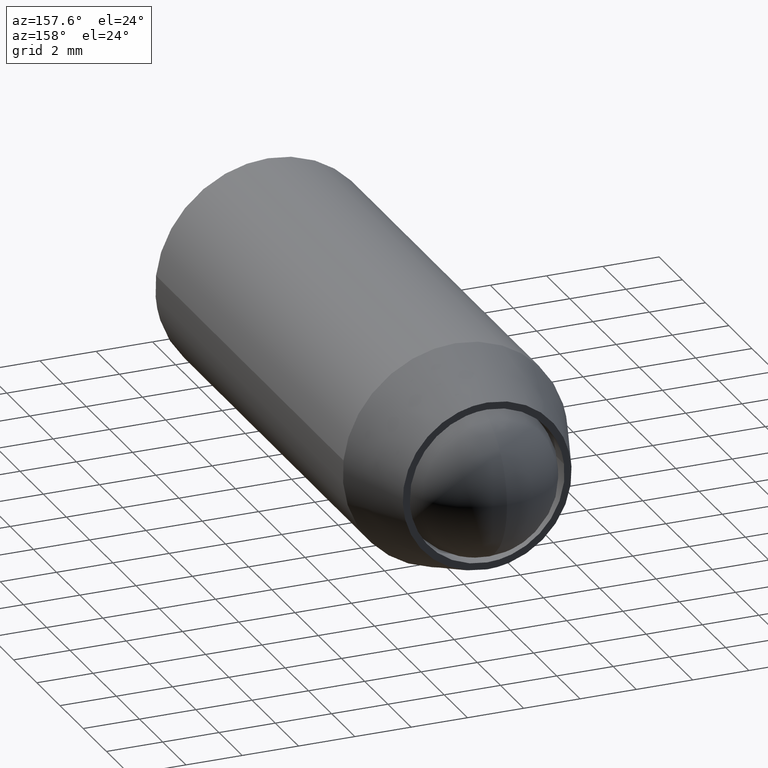
[diagram: clean part render]
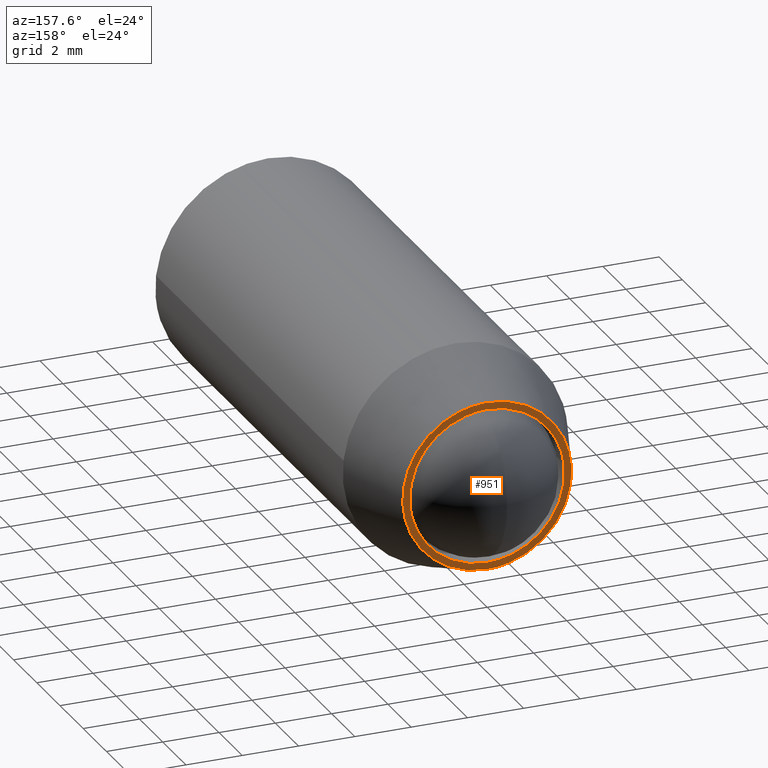
[diagram: same view with one face highlighted and labeled with its STEP entity id]
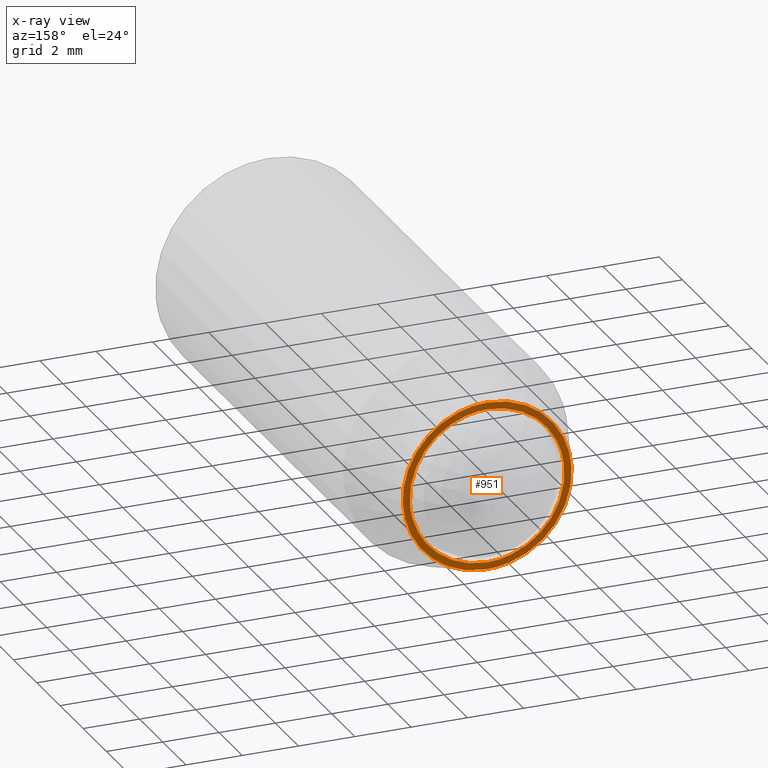
[diagram: x-ray of the same camera — body ghosted, the highlighted face saturated]
A machine part, auxiliary view. The second image highlights one B-rep face of the part: STEP entity #951.
The next image is the same camera in x-ray: the body ghosted, the highlighted face saturated — about 0% of this face is hidden behind the body in this view.
In plain terms, the highlighted face is a freeform B-spline surface patch.
Its self-contained STEP definition (entity closure, byte-faithful):
#100=CARTESIAN_POINT('',(2.744870878678144,-1.110223E-016,-0.167880491349306));
#101=VERTEX_POINT('',#100);
#107=CARTESIAN_POINT('',(0.0,0.0,-2.750000000000000));
#108=VERTEX_POINT('',#107);
#109=CARTESIAN_POINT('',(0.0,0.0,-2.750000000000000));
#110=CARTESIAN_POINT('',(2.586944509464315,0.0,-2.749999999999999));
#111=CARTESIAN_POINT('',(2.744870878678144,-1.110223E-016,-0.167880491349306));
#119=(BOUNDED_CURVE()B_SPLINE_CURVE(2,(#109,#110,#111),.UNSPECIFIED.,.F.,.U.)B_SPLINE_CURVE_WITH_KNOTS((3,3),(0.500000000000000,0.739333150347069),.UNSPECIFIED.)CURVE()GEOMETRIC_REPRESENTATION_ITEM()RATIONAL_B_SPLINE_CURVE((1.0,0.719603772904333,0.976072444818570))REPRESENTATION_ITEM(''));
#120=EDGE_CURVE('',#108,#101,#119,.T.);
#122=CARTESIAN_POINT('',(-2.730776763826689,-1.135771E-016,0.324589380789353));
#123=VERTEX_POINT('',#122);
#124=CARTESIAN_POINT('',(-2.730776763826689,-1.135771E-016,0.324589380789353));
#125=CARTESIAN_POINT('',(-2.750000000000000,0.0,0.162863921600079));
#126=CARTESIAN_POINT('',(-2.750000000000000,0.0,0.0));
#127=CARTESIAN_POINT('',(-2.750000000000000,0.0,-2.750000000000000));
#128=CARTESIAN_POINT('',(0.0,0.0,-2.750000000000000));
#136=(BOUNDED_CURVE()B_SPLINE_CURVE(2,(#124,#125,#126,#127,#128),.UNSPECIFIED.,.F.,.U.)B_SPLINE_CURVE_WITH_KNOTS((3,2,3),(0.229562768383781,0.250000000000000,0.500000000000000),.UNSPECIFIED.)CURVE()GEOMETRIC_REPRESENTATION_ITEM()RATIONAL_B_SPLINE_CURVE((0.956027332142316,0.976056293793159,1.0,0.707106781186548,1.0))REPRESENTATION_ITEM(''));
#137=EDGE_CURVE('',#123,#108,#136,.T.);
#185=CARTESIAN_POINT('',(0.0,0.0,2.750000000000000));
#186=VERTEX_POINT('',#185);
#187=CARTESIAN_POINT('',(0.0,0.0,2.750000000000000));
#188=CARTESIAN_POINT('',(-2.442484237880779,0.0,2.750000000000000));
#189=CARTESIAN_POINT('',(-2.730776763826689,-1.135771E-016,0.324589380789353));
#197=(BOUNDED_CURVE()B_SPLINE_CURVE(2,(#187,#188,#189),.UNSPECIFIED.,.F.,.U.)B_SPLINE_CURVE_WITH_KNOTS((3,3),(0.0,0.229562768383781),.UNSPECIFIED.)CURVE()GEOMETRIC_REPRESENTATION_ITEM()RATIONAL_B_SPLINE_CURVE((1.0,0.731050487393389,0.956027332142316))REPRESENTATION_ITEM(''));
#198=EDGE_CURVE('',#186,#123,#197,.T.);
#200=CARTESIAN_POINT('',(2.744870878678144,-1.110223E-016,-0.167880491349306));
#201=CARTESIAN_POINT('',(2.750000000000000,0.0,-0.084018598690310));
#202=CARTESIAN_POINT('',(2.750000000000000,0.0,0.0));
#203=CARTESIAN_POINT('',(2.750000000000000,0.0,2.750000000000000));
#204=CARTESIAN_POINT('',(0.0,0.0,2.750000000000000));
#212=(BOUNDED_CURVE()B_SPLINE_CURVE(2,(#200,#201,#202,#203,#204),.UNSPECIFIED.,.F.,.U.)B_SPLINE_CURVE_WITH_KNOTS((3,2,3),(0.739333150347069,0.750000000000000,1.0),.UNSPECIFIED.)CURVE()GEOMETRIC_REPRESENTATION_ITEM()RATIONAL_B_SPLINE_CURVE((0.976072444818570,0.987503008282215,1.0,0.707106781186548,1.0))REPRESENTATION_ITEM(''));
#213=EDGE_CURVE('',#101,#186,#212,.T.);
#260=CARTESIAN_POINT('',(-2.432920718910684,-2.809699E-013,-1.755248351514891));
#261=VERTEX_POINT('',#260);
#262=CARTESIAN_POINT('',(0.0,0.0,-3.000000000000001));
#263=VERTEX_POINT('',#262);
#264=CARTESIAN_POINT('',(-2.432920718910684,-2.809699E-013,-1.755248351514890));
#265=CARTESIAN_POINT('',(-1.534885586869182,0.0,-3.000000000000000));
#266=CARTESIAN_POINT('',(0.0,0.0,-3.000000000000001));
#274=(BOUNDED_CURVE()B_SPLINE_CURVE(2,(#264,#265,#266),.UNSPECIFIED.,.F.,.U.)B_SPLINE_CURVE_WITH_KNOTS((3,3),(0.850743050382277,1.0),.UNSPECIFIED.)CURVE()GEOMETRIC_REPRESENTATION_ITEM()RATIONAL_B_SPLINE_CURVE((0.859068214727218,0.825134606384751,1.0))REPRESENTATION_ITEM(''));
#275=EDGE_CURVE('',#261,#263,#274,.T.);
#277=CARTESIAN_POINT('',(0.0,0.0,2.999999999999999));
#278=VERTEX_POINT('',#277);
#279=CARTESIAN_POINT('',(0.0,0.0,-3.000000000000001));
#280=CARTESIAN_POINT('',(3.0,0.0,-3.0));
#281=CARTESIAN_POINT('',(3.0,0.0,-6.735335E-016));
#282=CARTESIAN_POINT('',(3.0,0.0,2.999999999999999));
#283=CARTESIAN_POINT('',(0.0,0.0,2.999999999999999));
#291=(BOUNDED_CURVE()B_SPLINE_CURVE(2,(#279,#280,#281,#282,#283),.UNSPECIFIED.,.F.,.U.)B_SPLINE_CURVE_WITH_KNOTS((3,2,3),(0.0,0.250000000000000,0.500000000000000),.UNSPECIFIED.)CURVE()GEOMETRIC_REPRESENTATION_ITEM()RATIONAL_B_SPLINE_CURVE((1.0,0.707106781186548,1.0,0.707106781186548,1.0))REPRESENTATION_ITEM(''));
#292=EDGE_CURVE('',#263,#278,#291,.T.);
#294=CARTESIAN_POINT('',(-2.994404395265736,-4.475316E-012,0.183145618629053));
#295=VERTEX_POINT('',#294);
#296=CARTESIAN_POINT('',(0.0,0.0,2.999999999999999));
#297=CARTESIAN_POINT('',(-2.822118200671037,0.0,2.999999999999999));
#298=CARTESIAN_POINT('',(-2.994404395265736,-4.475316E-012,0.183145618629053));
#306=(BOUNDED_CURVE()B_SPLINE_CURVE(2,(#296,#297,#298),.UNSPECIFIED.,.F.,.U.)B_SPLINE_CURVE_WITH_KNOTS((3,3),(0.500000000000000,0.739332962239158),.UNSPECIFIED.)CURVE()GEOMETRIC_REPRESENTATION_ITEM()RATIONAL_B_SPLINE_CURVE((1.0,0.719603993286458,0.976072041667179))REPRESENTATION_ITEM(''));
#307=EDGE_CURVE('',#278,#295,#306,.T.);
#400=CARTESIAN_POINT('',(-2.994404395265736,-4.475316E-012,0.183145618629053));
#401=CARTESIAN_POINT('',(-3.000000000000000,0.0,0.091658289920218));
#402=CARTESIAN_POINT('',(-3.0,0.0,-6.735335E-016));
#403=CARTESIAN_POINT('',(-3.000000000000000,0.0,-0.969229136038005));
#404=CARTESIAN_POINT('',(-2.432920718910683,-2.809699E-013,-1.755248351514891));
#412=(BOUNDED_CURVE()B_SPLINE_CURVE(2,(#400,#401,#402,#403,#404),.UNSPECIFIED.,.F.,.U.)B_SPLINE_CURVE_WITH_KNOTS((3,2,3),(0.739332962239158,0.750000000000000,0.850743050382276),.UNSPECIFIED.)CURVE()GEOMETRIC_REPRESENTATION_ITEM()RATIONAL_B_SPLINE_CURVE((0.976072041667179,0.987502787900090,1.0,0.881972174801797,0.859068214727219))REPRESENTATION_ITEM(''));
#413=EDGE_CURVE('',#295,#261,#412,.T.);
#934=CARTESIAN_POINT('',(-3.299611165884719,0.0,-3.299699988370836));
#935=CARTESIAN_POINT('',(-3.299611165884719,0.0,3.299700149303375));
#936=CARTESIAN_POINT('',(3.299695923689590,0.0,-3.299699988370836));
#937=CARTESIAN_POINT('',(3.299695923689590,0.0,3.299700149303375));
#938=B_SPLINE_SURFACE_WITH_KNOTS('',1,1,((#934,#936),(#935,#937)),.UNSPECIFIED.,.F.,.F.,.U.,(2,2),(2,2),(0.0,6.599400137674211),(0.0,6.599307089574308),.UNSPECIFIED.);
#939=ORIENTED_EDGE('',*,*,#275,.F.);
#940=ORIENTED_EDGE('',*,*,#413,.F.);
#941=ORIENTED_EDGE('',*,*,#307,.F.);
#942=ORIENTED_EDGE('',*,*,#292,.F.);
#943=EDGE_LOOP('',(#939,#940,#941,#942));
#944=FACE_OUTER_BOUND('',#943,.T.);
#945=ORIENTED_EDGE('',*,*,#120,.T.);
#946=ORIENTED_EDGE('',*,*,#213,.T.);
#947=ORIENTED_EDGE('',*,*,#198,.T.);
#948=ORIENTED_EDGE('',*,*,#137,.T.);
#949=EDGE_LOOP('',(#945,#946,#947,#948));
#950=FACE_BOUND('',#949,.T.);
#951=ADVANCED_FACE('',(#944,#950),#938,.T.);